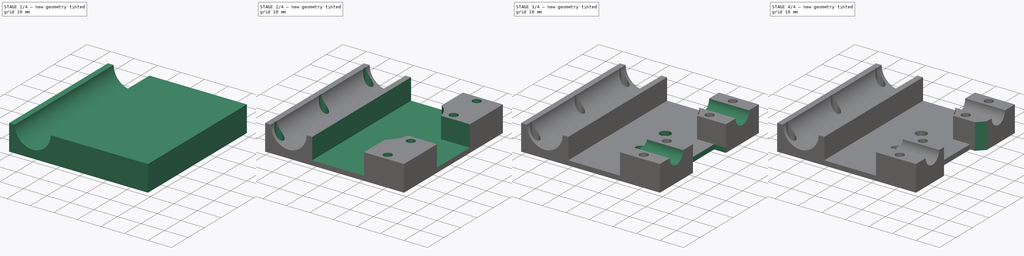
[diagram: build sequence overview — one tinted view per stage of 4, left to right]
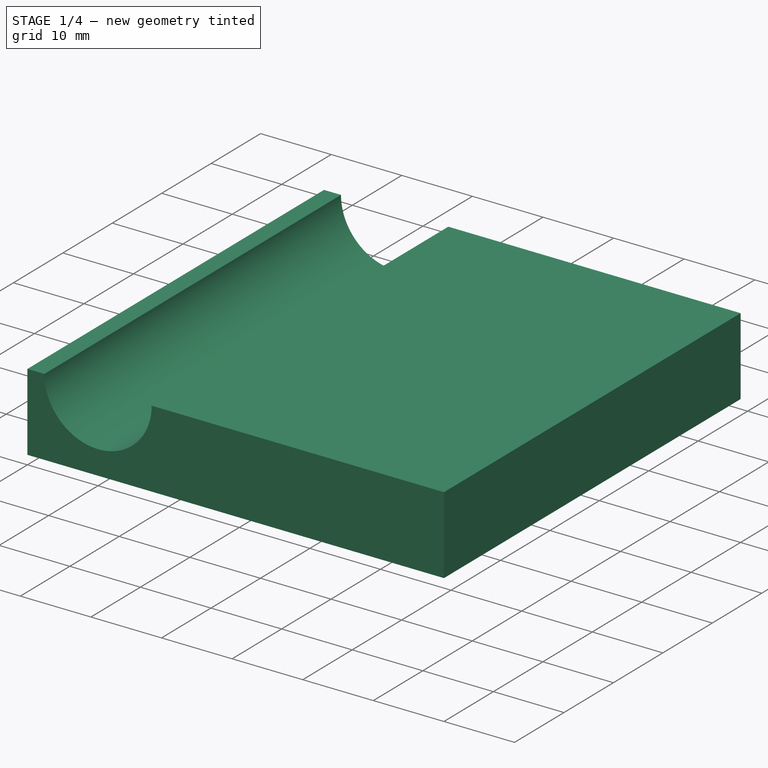
[diagram: stage 1 of 4 — iso view after this stage's code; geometry added in this stage tinted green]
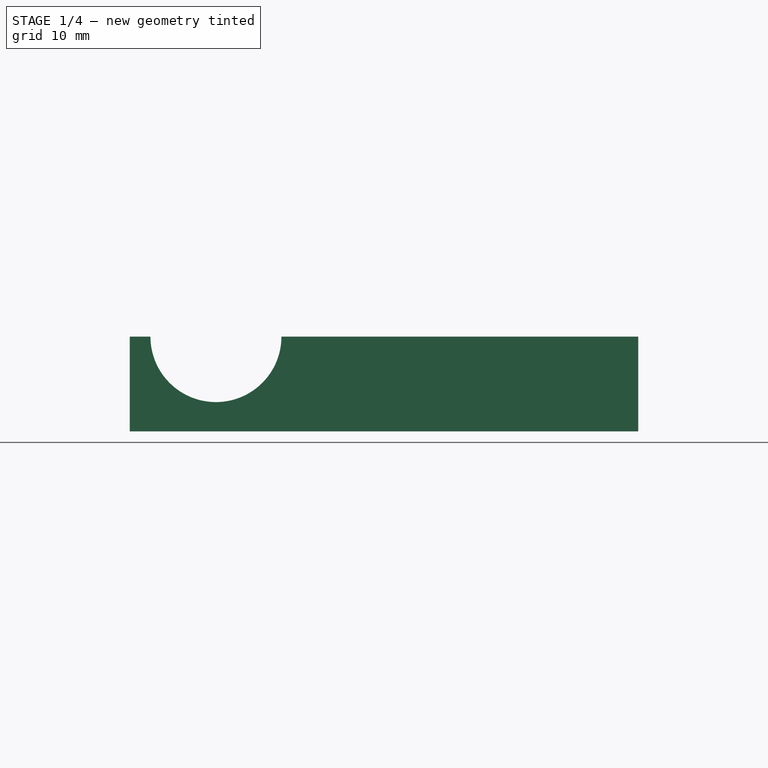
[diagram: stage 1 of 4 — front view after this stage's code; geometry added in this stage tinted green]
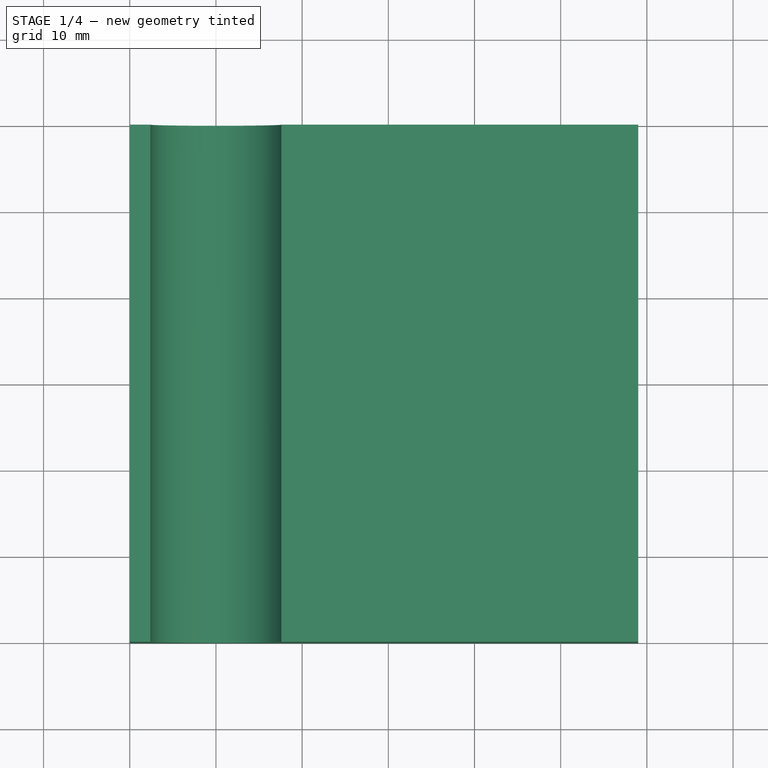
[diagram: stage 1 of 4 — top view after this stage's code; geometry added in this stage tinted green]
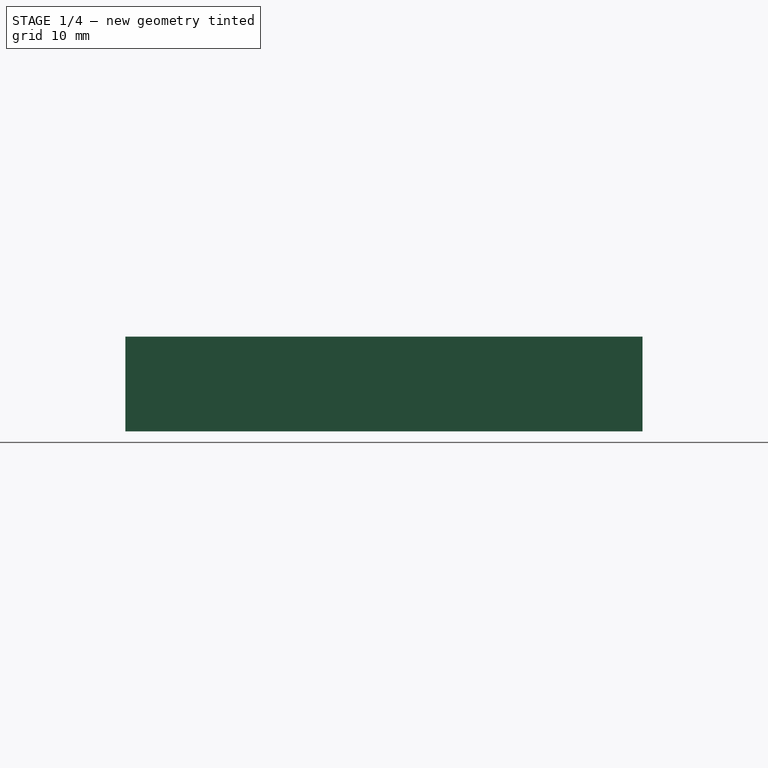
[diagram: stage 1 of 4 — right view after this stage's code; geometry added in this stage tinted green]
FCSTD DOCUMENT  (FreeCAD 0.16R4945 (Git))
Label: XY-block-top topM
License: CC-BY 3.0
LicenseURL: http://creativecommons.org/licenses/by/3.0/
objects: Sketcher::SketchObject×8, PartDesign::Pocket×7, PartDesign::Pad×1, PartDesign::Chamfer×1
note: 25 computed .brp shape members not serialized (recipe doc carries the construction recipe); baked Part::Feature solids carry a one-line shape summary decoded from their .brp

FEATURE [Sketcher::SketchObject] Sketch
  sketch-geometry (4):
    g0: LineSegment StartX=-10 StartY=-30 StartZ=0 EndX=49 EndY=-30 EndZ=0
    g1: LineSegment StartX=49 StartY=-30 StartZ=0 EndX=49 EndY=30 EndZ=0
    g2: LineSegment StartX=49 StartY=30 StartZ=0 EndX=-10 EndY=30 EndZ=0
    g3: LineSegment StartX=-10 StartY=30 StartZ=0 EndX=-10 EndY=-30 EndZ=0
  constraints (12):
    c: Coincident(g0,g1)
    c: Coincident(g1,g2)
    c: Coincident(g2,g3)
    c: Coincident(g3,g0)
    c: Horizontal(g0)
    c: Horizontal(g2)
    c: Vertical(g1)
    c: Vertical(g3)
    c: DistanceX(g0) = 59
    c: DistanceY(g1) = 60
    c: DistanceX(g0) = -10
    c: DistanceY(g0) = -30
FEATURE [PartDesign::Pad] Pad
  Length = 11
  Length2 = 100
  Sketch = -> Sketch
  Type = 0
FEATURE [Sketcher::SketchObject] Sketch001
  Placement = pos=(0,-30,0) rot=(1,0,0;1.5708rad)
  Support = -> Pad [Face1]
  sketch-geometry (1):
    g0: Circle CenterX=0 CenterY=11 CenterZ=0 NormalX=0 NormalY=0 NormalZ=1 Radius=7.6
  constraints (3):
    c: Radius(g0) = 7.6
    c: DistanceX(g0) = 0
    c: DistanceY(g0) = 11
FEATURE [PartDesign::Pocket] Pocket  label="Pocket-lm8uu-hole"
  Length = 5
  Sketch = -> Sketch001
  Type = 1
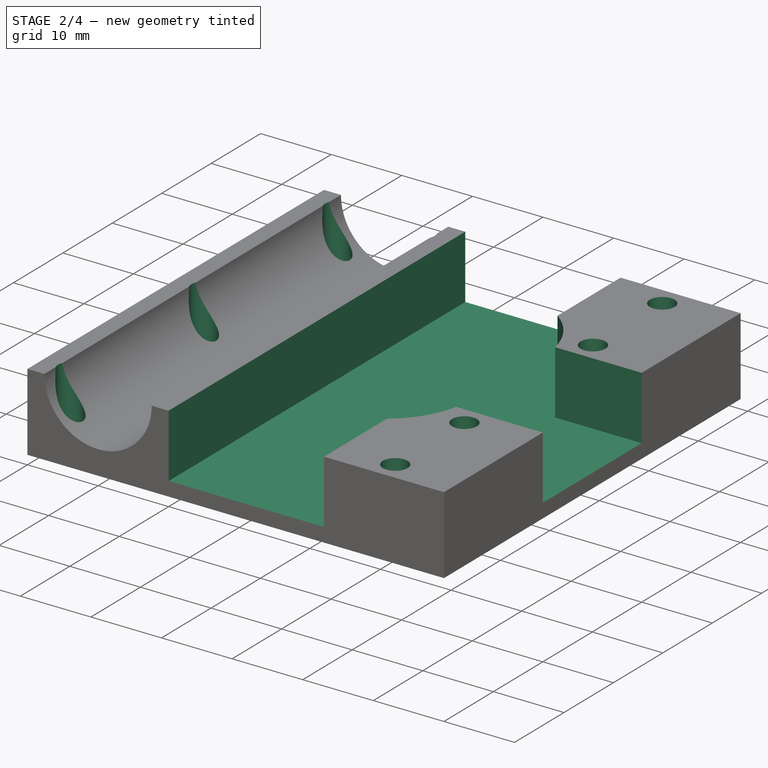
[diagram: stage 2 of 4 — iso view after this stage's code; geometry added in this stage tinted green]
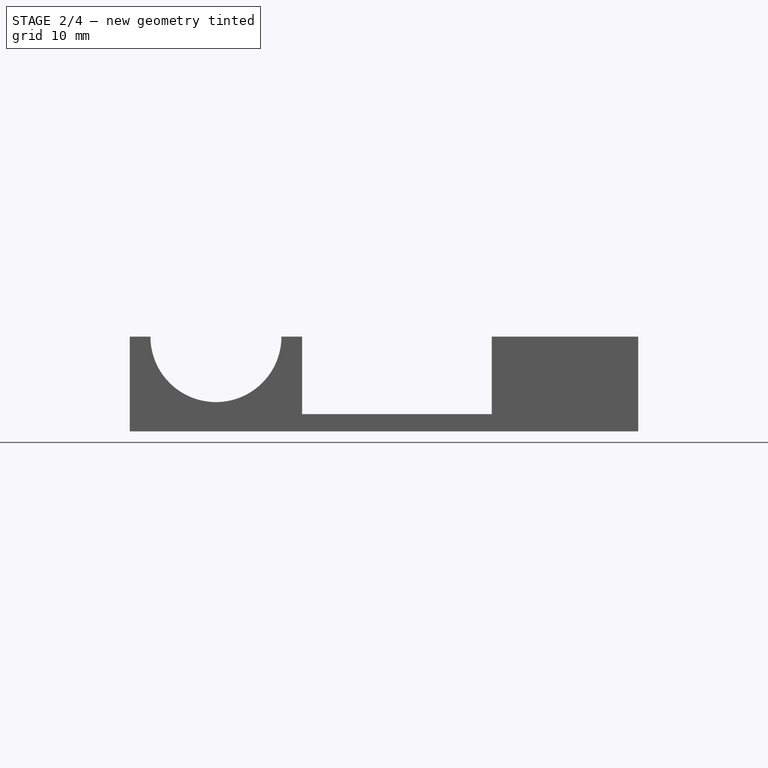
[diagram: stage 2 of 4 — front view after this stage's code; geometry added in this stage tinted green]
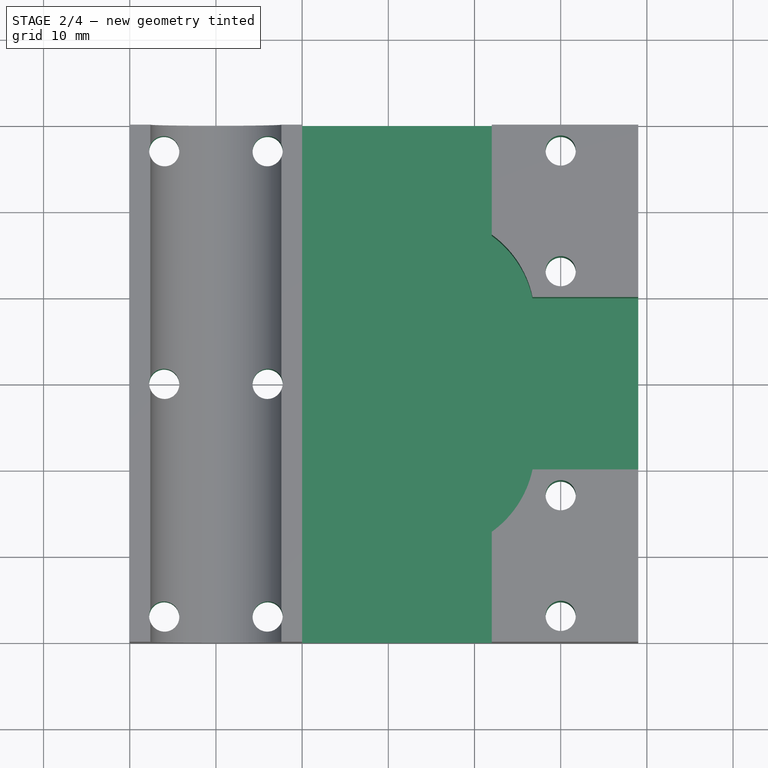
[diagram: stage 2 of 4 — top view after this stage's code; geometry added in this stage tinted green]
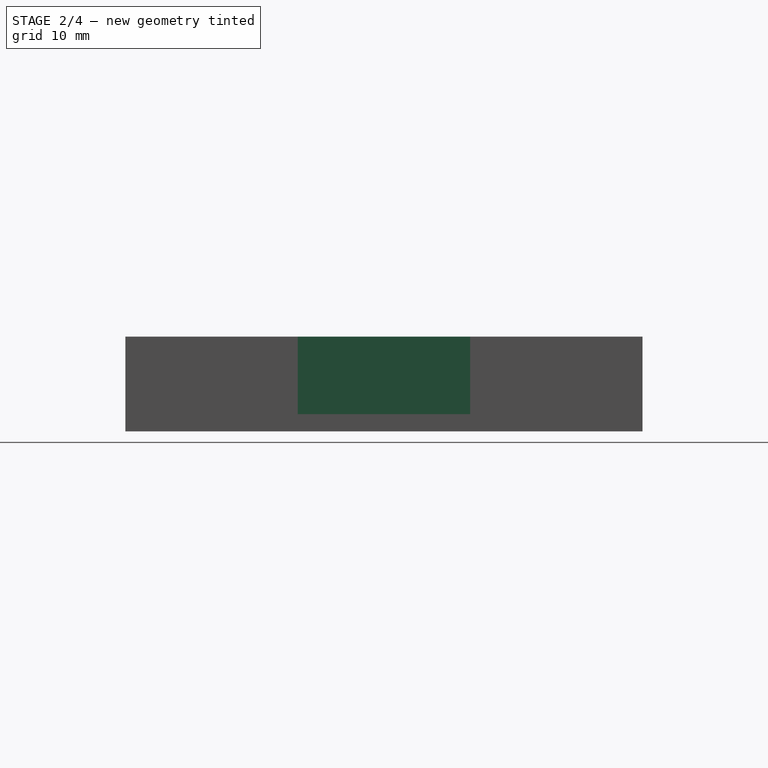
[diagram: stage 2 of 4 — right view after this stage's code; geometry added in this stage tinted green]
FEATURE [Sketcher::SketchObject] Sketch002
  Placement = pos=(0,0,11) rot=(0,0,1;0rad)
  Support = -> Pocket [Face4]
  sketch-geometry (17):
    g0: Circle CenterX=-6 CenterY=27 CenterZ=0 NormalX=0 NormalY=0 NormalZ=1 Radius=1.75
    g1: Circle CenterX=40 CenterY=27 CenterZ=0 NormalX=0 NormalY=0 NormalZ=1 Radius=1.75
    g2: Circle CenterX=-6 CenterY=-27 CenterZ=0 NormalX=0 NormalY=0 NormalZ=1 Radius=1.75
    g3: Circle CenterX=40 CenterY=-27 CenterZ=0 NormalX=0 NormalY=0 NormalZ=1 Radius=1.75
    g4: LineSegment [constr] StartX=-6 StartY=27 StartZ=0 EndX=40 EndY=27 EndZ=0
    g5: LineSegment [constr] StartX=40 StartY=27 StartZ=0 EndX=40 EndY=-27 EndZ=0
    g6: LineSegment [constr] StartX=40 StartY=-27 StartZ=0 EndX=-6 EndY=-27 EndZ=0
    g7: Circle CenterX=6 CenterY=27 CenterZ=0 NormalX=0 NormalY=0 NormalZ=1 Radius=1.75
    g8: Circle CenterX=6 CenterY=-27 CenterZ=0 NormalX=0 NormalY=0 NormalZ=1 Radius=1.75
    g9: Circle CenterX=6 CenterY=0 CenterZ=0 NormalX=0 NormalY=0 NormalZ=1 Radius=1.75
    g10: Circle CenterX=-6 CenterY=0 CenterZ=0 NormalX=0 NormalY=0 NormalZ=1 Radius=1.75
    g11: LineSegment [constr] StartX=6 StartY=27 StartZ=0 EndX=6 EndY=-27 EndZ=0
    g12: LineSegment [constr] StartX=-6 StartY=0 StartZ=0 EndX=6 EndY=0 EndZ=0
    g13: LineSegment [constr] StartX=-6 StartY=-27 StartZ=0 EndX=-6 EndY=0 EndZ=0
    g14: LineSegment [constr] StartX=-6 StartY=0 StartZ=0 EndX=-6 EndY=27 EndZ=0
    g15: Circle CenterX=40 CenterY=-13 CenterZ=0 NormalX=0 NormalY=0 NormalZ=1 Radius=1.75
    g16: Circle CenterX=40 CenterY=13 CenterZ=0 NormalX=0 NormalY=0 NormalZ=1 Radius=1.75
  constraints (44):
    c: Radius(g0) = 1.75
    c: Equal(g0,g1)
    c: Equal(g0,g2)
    c: Equal(g0,g3)
    c: Coincident(g4,g5)
    c: Coincident(g5,g6)
    c: Horizontal(g4)
    c: Horizontal(g6)
    c: Vertical(g5)
    c: Coincident(g0,g4)
    c: Coincident(g6,g2)
    c: Coincident(g3,g5)
    c: Coincident(g1,g4)
    c: Equal(g0,g7)
    c: Equal(g0,g8)
    c: Equal(g10,g0)
    c: Equal(g9,g0)
    c: Coincident(g11,g7)
    c: Coincident(g11,g8)
    c: PointOnObject(g12,g11)
    c: Horizontal(g12)
    c: Vertical(g11)
    c: PointOnObject(g7,g4)
    c: PointOnObject(g8,g6)
    c: Coincident(g10,g12)
    c: Coincident(g9,g12)
    c: Coincident(g13,g2)
    c: Coincident(g13,g10)
    c: Vertical(g13)
    c: Coincident(g14,g10)
    c: Coincident(g14,g0)
    c: Vertical(g14)
    c: Equal(g14,g13)
    c: DistanceX(g2,g8) = 12
    c: PointOnObject(g15,g5)
    c: PointOnObject(g16,g5)
    c: Equal(g16,g0)
    c: Equal(g15,g0)
    c: DistanceY(g15,g3) = -14
    c: DistanceY(g1,g16) = -14
    c: DistanceX(g-1,g10) = -6
    c: DistanceY(g3,g1) = 54
    c: DistanceX(g2,g3) = 46
    c: DistanceY(g-1,g2) = -27
FEATURE [PartDesign::Pocket] Pocket001  label="Pocket-mount-holes"
  Length = 5
  Sketch = -> Sketch002
  Type = 1
FEATURE [Sketcher::SketchObject] Sketch003
  Placement = pos=(0,0,11) rot=(0,0,1;0rad)
  Support = -> Pocket001 [Face4]
  sketch-geometry (10):
    g0: LineSegment StartX=10 StartY=35 StartZ=0 EndX=10 EndY=-35 EndZ=0
    g1: LineSegment StartX=10 StartY=-35 StartZ=0 EndX=32 EndY=-35 EndZ=0
    g2: LineSegment StartX=32 StartY=-35 StartZ=0 EndX=32 EndY=-17.2468 EndZ=0
    g3: LineSegment StartX=36.7367 StartY=-10 StartZ=0 EndX=56.7367 EndY=-10 EndZ=0
    g4: LineSegment StartX=56.7367 StartY=-10 StartZ=0 EndX=56.7367 EndY=10 EndZ=0
    g5: LineSegment StartX=56.7367 StartY=10 StartZ=0 EndX=36.7367 EndY=10 EndZ=0
    g6: LineSegment StartX=32 StartY=17.2468 StartZ=0 EndX=32 EndY=35 EndZ=0
    g7: LineSegment StartX=32 StartY=35 StartZ=0 EndX=10 EndY=35 EndZ=0
    g8: ArcOfCircle CenterX=25 CenterY=7.5 CenterZ=0 NormalX=0 NormalY=0 NormalZ=1 Radius=12 StartAngle=0.209871 EndAngle=0.94797
    g9: ArcOfCircle CenterX=25 CenterY=-7.5 CenterZ=0 NormalX=0 NormalY=0 NormalZ=1 Radius=12 StartAngle=5.33522 EndAngle=6.07331
  constraints (32):
    c: Vertical(g0)
    c: Horizontal(g1)
    c: Coincident(g1,g2)
    c: Vertical(g2)
    c: Horizontal(g3)
    c: Coincident(g3,g4)
    c: Vertical(g4)
    c: Coincident(g4,g5)
    c: Horizontal(g5)
    c: Vertical(g6)
    c: Coincident(g6,g7)
    c: Coincident(g7,g0)
    c: Horizontal(g7)
    c: Coincident(g1,g0)
    c: Equal(g1,g7)
    c: Equal(g6,g2)
    c: Coincident(g9,g3)
    c: Coincident(g9,g2)
    c: Coincident(g8,g5)
    c: Coincident(g8,g6)
    c: Symmetric(g2,g6,g-1)
    c: Symmetric(g3,g5,g-1)
    c: Symmetric(g1,g6,g-1)
    c: DistanceX(g8) = 25
    c: DistanceY(g8) = 7.5
    c: DistanceX(g-1,g0) = 10
    c: DistanceX(g7) = -22
    c: Radius(g8) = 12
    c: Equal(g9,g8)
    c: DistanceY(g-1,g0) = 35
    c: DistanceY(g4) = 20
    c: Distance(g3) = 20
FEATURE [PartDesign::Pocket] Pocket002  label="Pocket-belt-path"
  Length = 9
  Sketch = -> Sketch003
  Type = 0
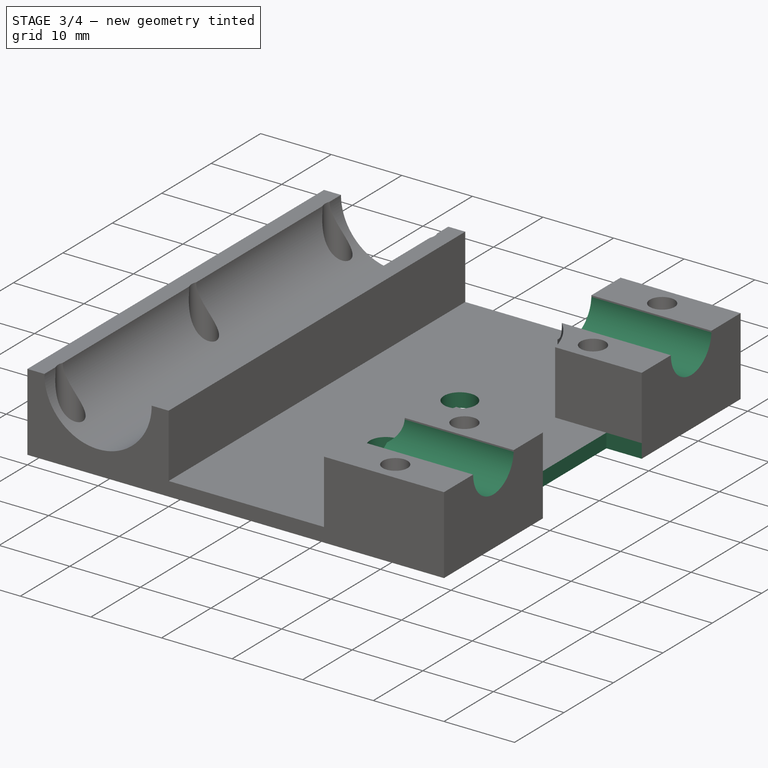
[diagram: stage 3 of 4 — iso view after this stage's code; geometry added in this stage tinted green]
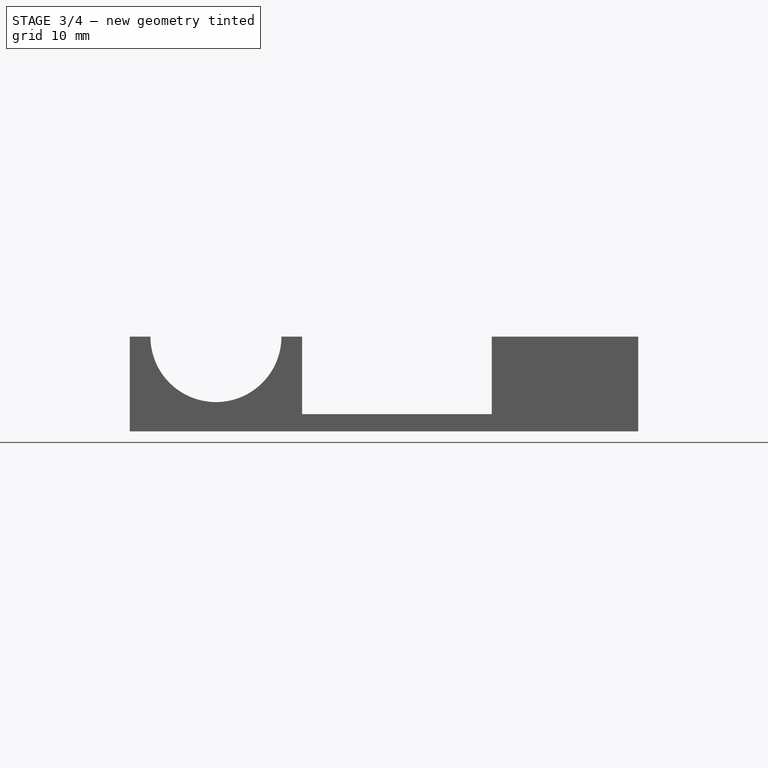
[diagram: stage 3 of 4 — front view after this stage's code; geometry added in this stage tinted green]
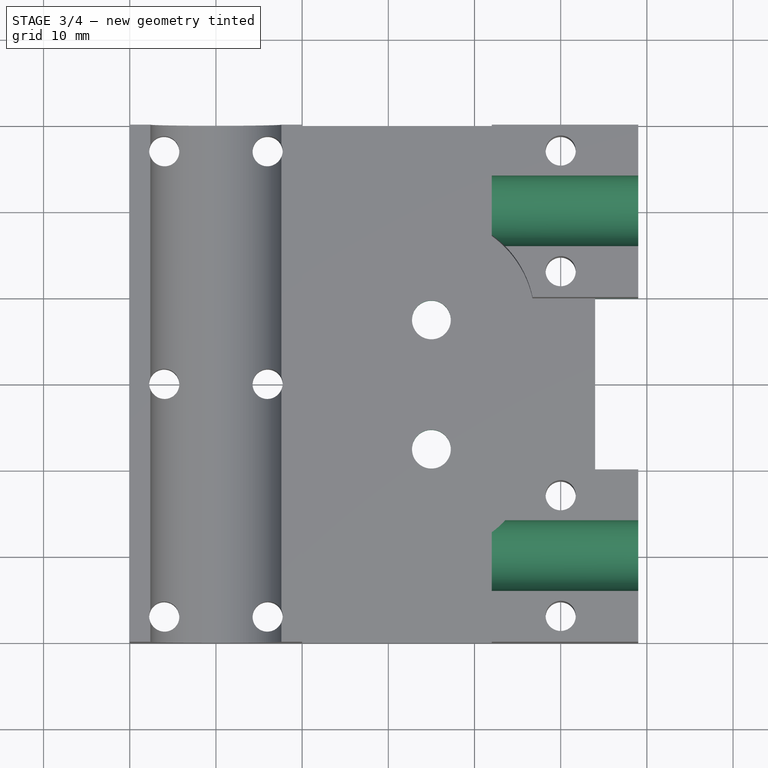
[diagram: stage 3 of 4 — top view after this stage's code; geometry added in this stage tinted green]
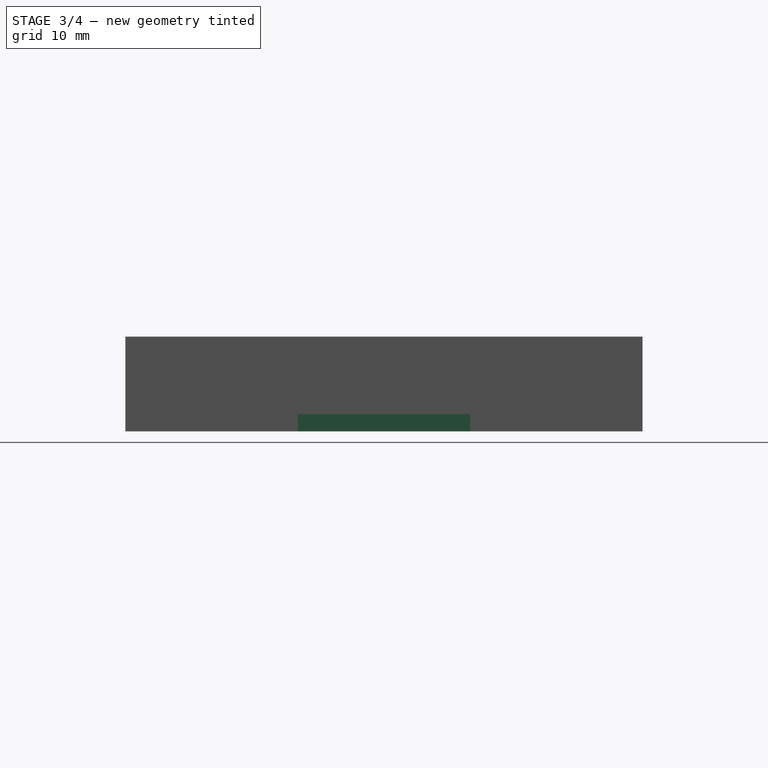
[diagram: stage 3 of 4 — right view after this stage's code; geometry added in this stage tinted green]
FEATURE [Sketcher::SketchObject] Sketch004
  Placement = pos=(0,0,0) rot=(1,0,0;3.14159rad)
  Support = -> Pocket002 [Face2]
  sketch-geometry (3):
    g0: Circle CenterX=25 CenterY=7.5 CenterZ=0 NormalX=0 NormalY=0 NormalZ=1 Radius=2.25
    g1: Circle CenterX=25 CenterY=-7.5 CenterZ=0 NormalX=0 NormalY=0 NormalZ=1 Radius=2.25
    g2: LineSegment [constr] StartX=25 StartY=7.5 StartZ=0 EndX=25 EndY=-7.5 EndZ=0
  constraints (8):
    c: Coincident(g2,g0)
    c: Coincident(g2,g1)
    c: Vertical(g2)
    c: DistanceX(g-1,g1) = 25
    c: Equal(g0,g1)
    c: Radius(g0) = 2.25
    c: Distance(g2) = 15
    c: DistanceY(g-1,g0) = 7.5
FEATURE [PartDesign::Pocket] Pocket003  label="Pocket-idler-pulleys-holes"
  Length = 5
  Sketch = -> Sketch004
  Type = 1
FEATURE [Sketcher::SketchObject] Sketch008
  Placement = pos=(49,0,0) rot=(0.57735,0.57735,0.57735;2.0944rad)
  Support = -> Pocket003 [Face3]
  sketch-geometry (2):
    g0: Circle CenterX=-20 CenterY=11 CenterZ=0 NormalX=0 NormalY=0 NormalZ=1 Radius=4.1
    g1: Circle CenterX=20 CenterY=11 CenterZ=0 NormalX=0 NormalY=0 NormalZ=1 Radius=4.1
  constraints (5):
    c: Symmetric(g0,g1,g-2)
    c: Equal(g0,g1)
    c: Radius(g0) = 4.1
    c: DistanceY(g-1,g0) = 11
    c: DistanceX(g0,g1) = 40
FEATURE [PartDesign::Pocket] Pocket005  label="Pocket-x-axis-holes"
  Length = 20
  Sketch = -> Sketch008
  Type = 0
FEATURE [Sketcher::SketchObject] Sketch010
  ExternalGeometry = -> [Pocket005]
  Placement = pos=(49,0,0) rot=(0.57735,0.57735,0.57735;2.0944rad)
  Support = -> Pocket005 [Face3]
  sketch-geometry (4):
    g0: LineSegment StartX=-10 StartY=17.9737 StartZ=0 EndX=10 EndY=17.9737 EndZ=0
    g1: LineSegment StartX=10 StartY=17.9737 StartZ=0 EndX=10 EndY=-7.02626 EndZ=0
    g2: LineSegment StartX=10 StartY=-7.02626 StartZ=0 EndX=-10 EndY=-7.02626 EndZ=0
    g3: LineSegment StartX=-10 StartY=-7.02626 StartZ=0 EndX=-10 EndY=17.9737 EndZ=0
  constraints (9):
    c: Coincident(g0,g1)
    c: Coincident(g1,g2)
    c: Coincident(g2,g3)
    c: Coincident(g3,g0)
    c: Horizontal(g0)
    c: Horizontal(g2)
    c: Vertical(g1)
    c: Vertical(g3)
    c: DistanceY(g1) = -25
FEATURE [PartDesign::Pocket] Pocket006  label="Pocket-between-x-axis-holes"
  Length = 5
  Sketch = -> Sketch010
  Type = 0
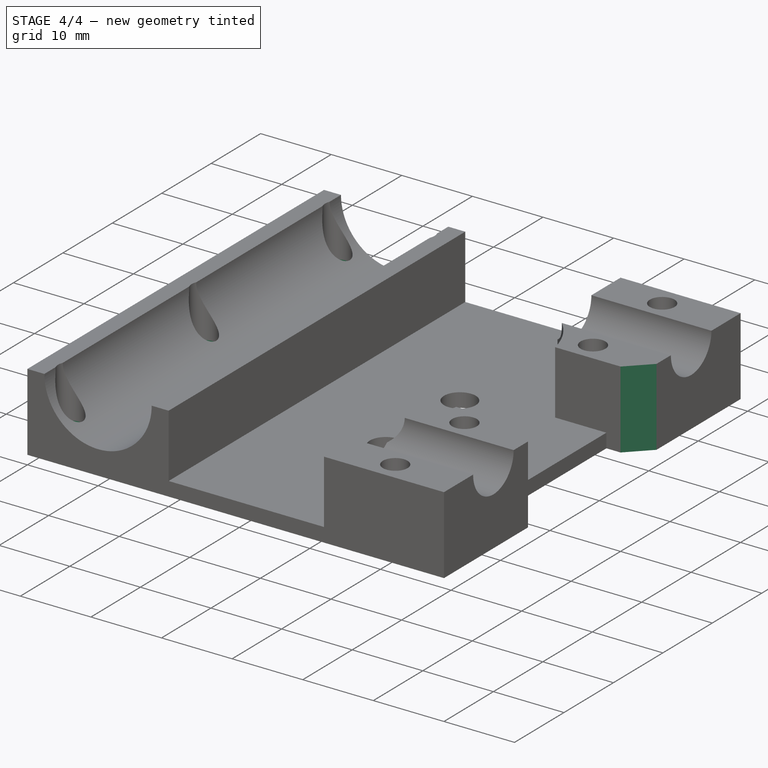
[diagram: stage 4 of 4 — iso view after this stage's code; geometry added in this stage tinted green]
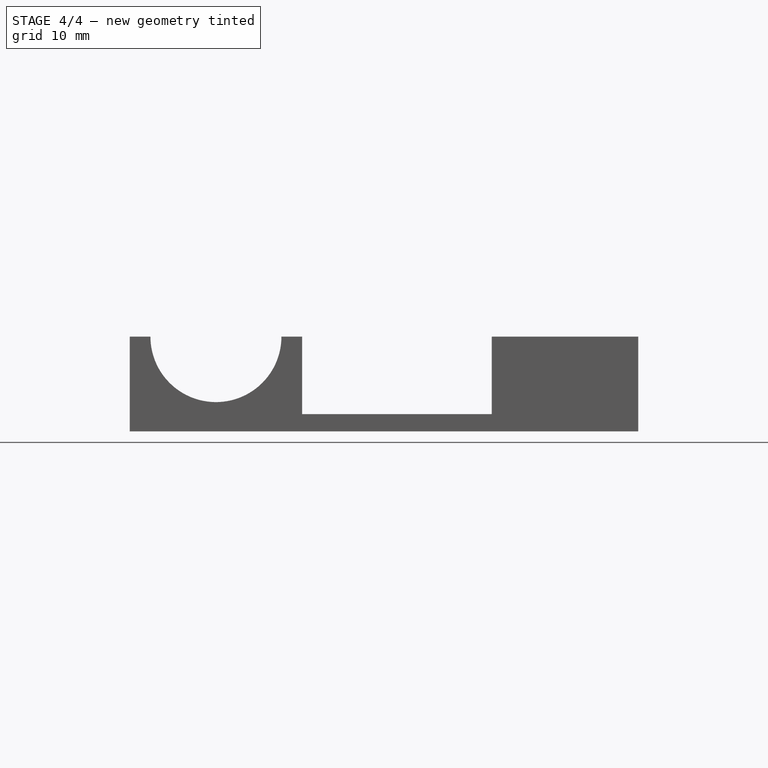
[diagram: stage 4 of 4 — front view after this stage's code; geometry added in this stage tinted green]
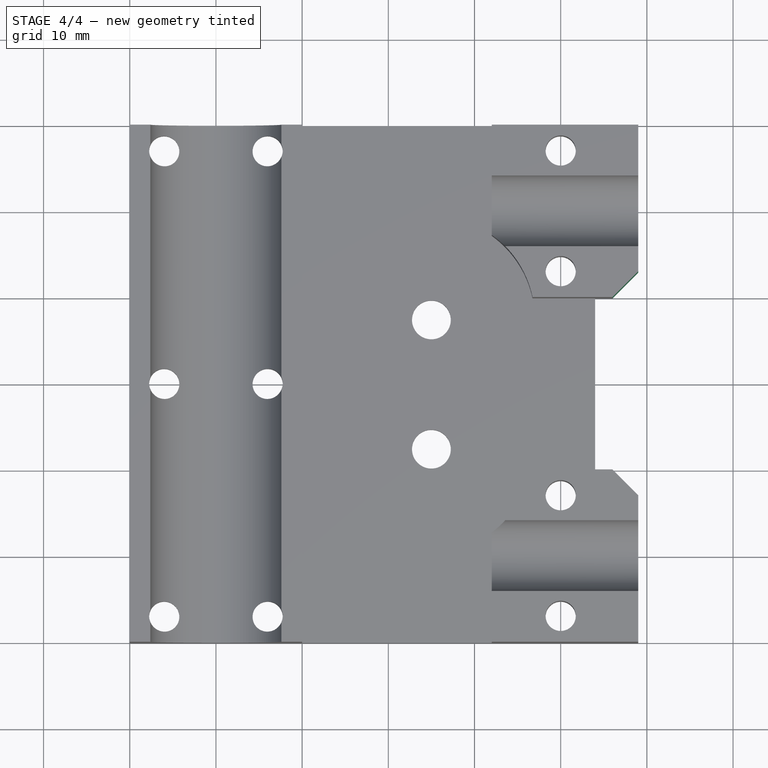
[diagram: stage 4 of 4 — top view after this stage's code; geometry added in this stage tinted green]
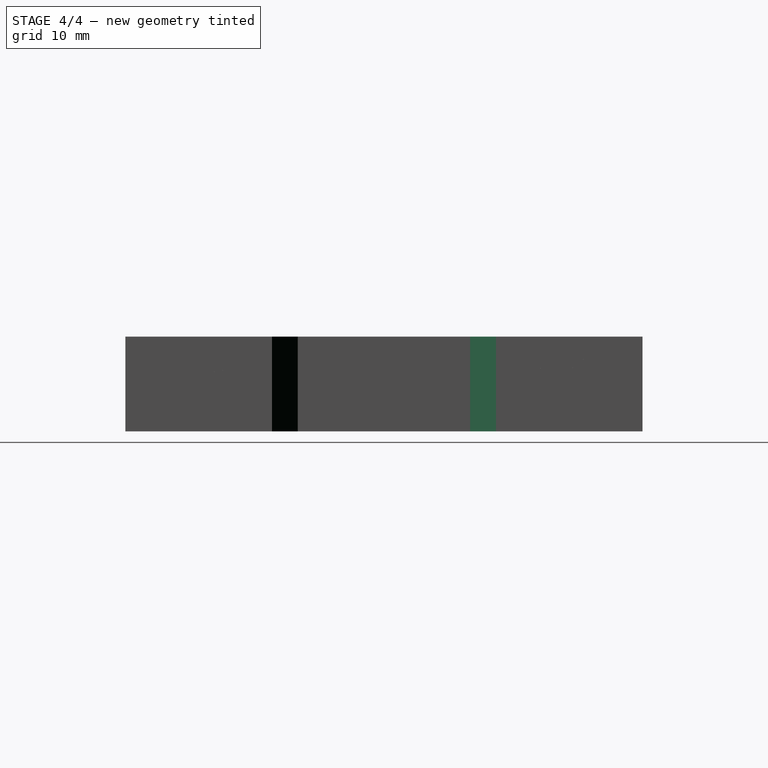
[diagram: stage 4 of 4 — right view after this stage's code; geometry added in this stage tinted green]
FEATURE [Sketcher::SketchObject] Sketch011
  ExternalGeometry = -> [Pocket006]
  Placement = pos=(0,0,0) rot=(1,0,0;3.14159rad)
  Support = -> Pocket006 [Face2]
  sketch-geometry (10):
    g0: Circle CenterX=6 CenterY=27 CenterZ=0 NormalX=0 NormalY=0 NormalZ=1 Radius=2.9
    g1: Circle CenterX=40 CenterY=-13 CenterZ=0 NormalX=0 NormalY=0 NormalZ=1 Radius=2.9
    g2: Circle CenterX=-6 CenterY=-27 CenterZ=0 NormalX=0 NormalY=0 NormalZ=1 Radius=2.9
    g3: Circle CenterX=6 CenterY=-27 CenterZ=0 NormalX=0 NormalY=0 NormalZ=1 Radius=2.9
    g4: Circle CenterX=40 CenterY=27 CenterZ=0 NormalX=0 NormalY=0 NormalZ=1 Radius=2.9
    g5: Circle CenterX=40 CenterY=13 CenterZ=0 NormalX=0 NormalY=0 NormalZ=1 Radius=2.9
    g6: Circle CenterX=40 CenterY=-27 CenterZ=0 NormalX=0 NormalY=0 NormalZ=1 Radius=2.9
    g7: Circle CenterX=-6 CenterY=27 CenterZ=0 NormalX=0 NormalY=0 NormalZ=1 Radius=2.9
    g8: Circle CenterX=6 CenterY=0 CenterZ=0 NormalX=0 NormalY=0 NormalZ=1 Radius=2.9
    g9: Circle CenterX=-6 CenterY=0 CenterZ=0 NormalX=0 NormalY=0 NormalZ=1 Radius=2.9
  constraints (20):
    c: Radius(g0) = 2.9
    c: Equal(g0,g1)
    c: Equal(g1,g2)
    c: Equal(g2,g3)
    c: Equal(g3,g4)
    c: Equal(g4,g5)
    c: Equal(g5,g6)
    c: Equal(g6,g7)
    c: Equal(g7,g8)
    c: Equal(g8,g9)
    c: Coincident(g2,g-12)
    c: Coincident(g3,g-11)
    c: Coincident(g6,g-10)
    c: Coincident(g1,g-9)
    c: Coincident(g9,g-7)
    c: Coincident(g8,g-8)
    c: Coincident(g5,g-6)
    c: Coincident(g4,g-5)
    c: Coincident(g0,g-4)
    c: Coincident(g7,g-3)
FEATURE [PartDesign::Pocket] Pocket007
  Length = 3.5
  Sketch = -> Sketch011
  Type = 0
FEATURE [PartDesign::Chamfer] Chamfer
  Base = -> Pocket007 [Edge31,Edge95]
  Size = 3
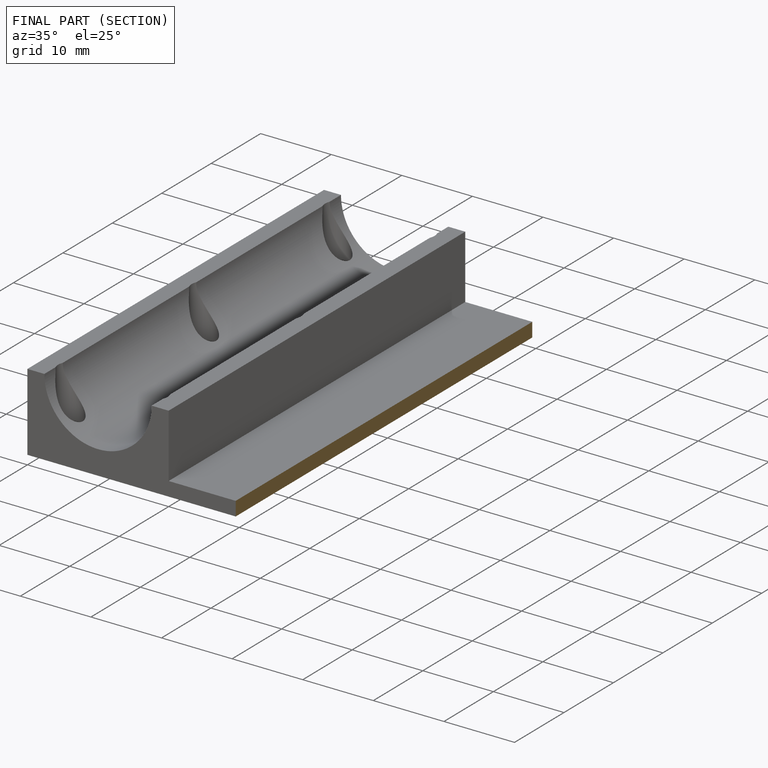
[diagram: finished part — half-section view (interior)]
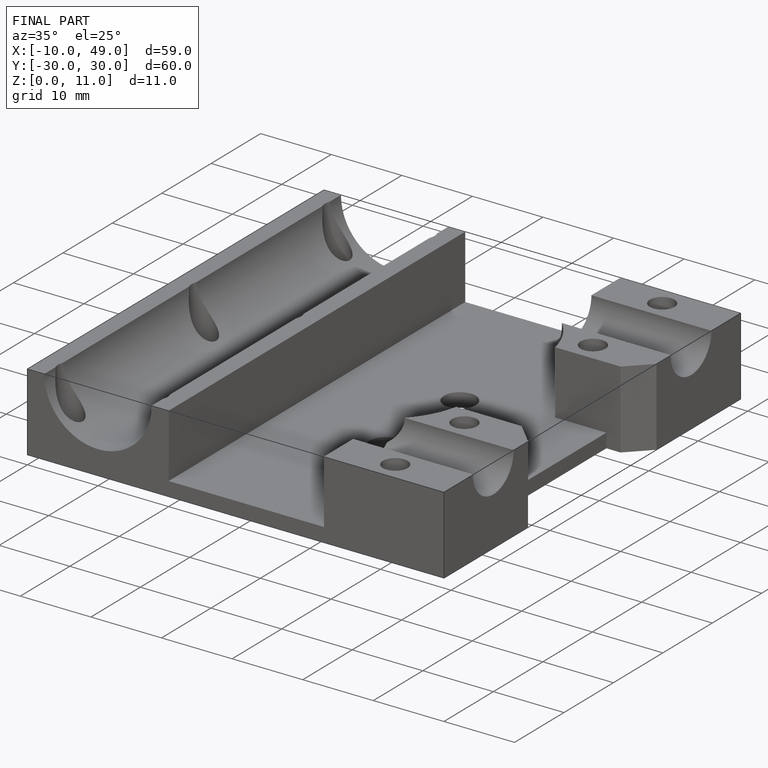
[diagram: finished part — iso view with bounding-box wireframe]
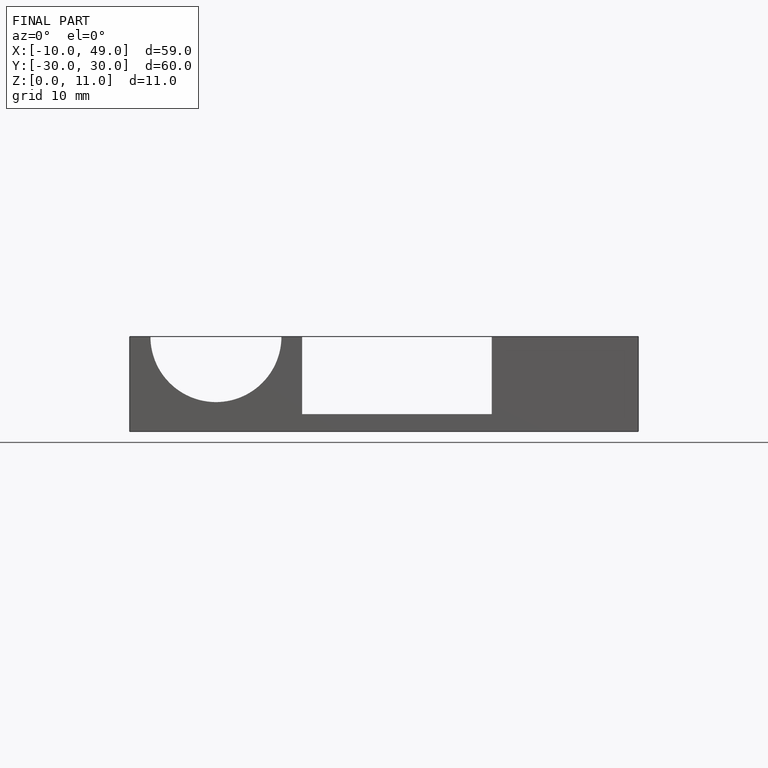
[diagram: finished part — front view with bounding-box wireframe]
